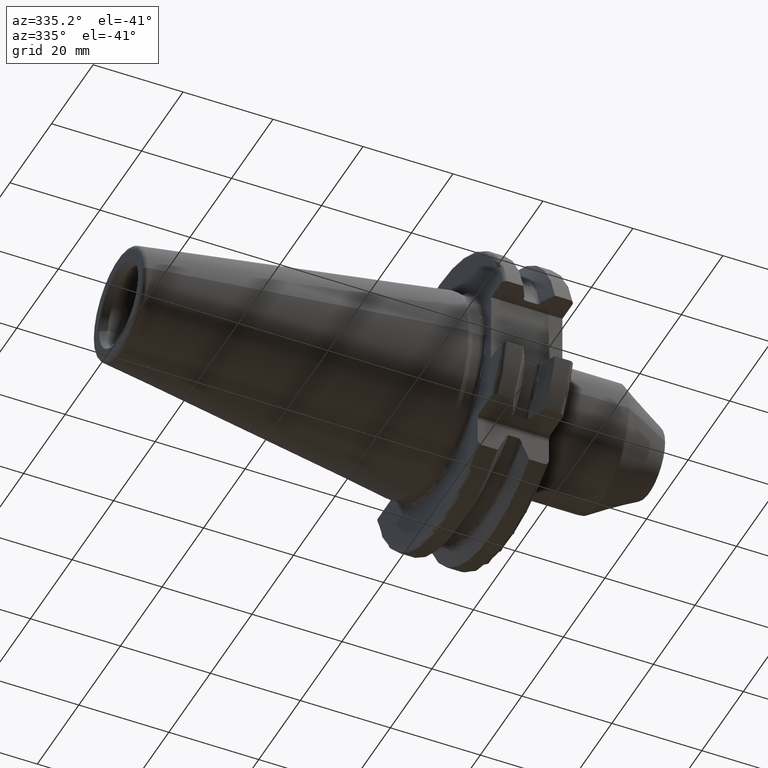
[diagram: clean part render]
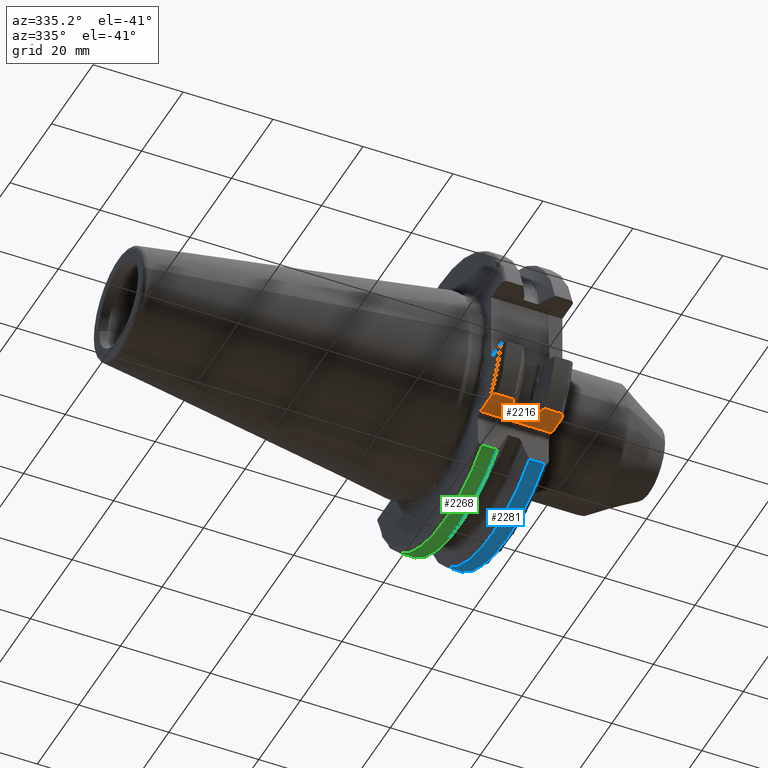
[diagram: same view with three faces highlighted in distinct colors, each labeled with its STEP entity id]
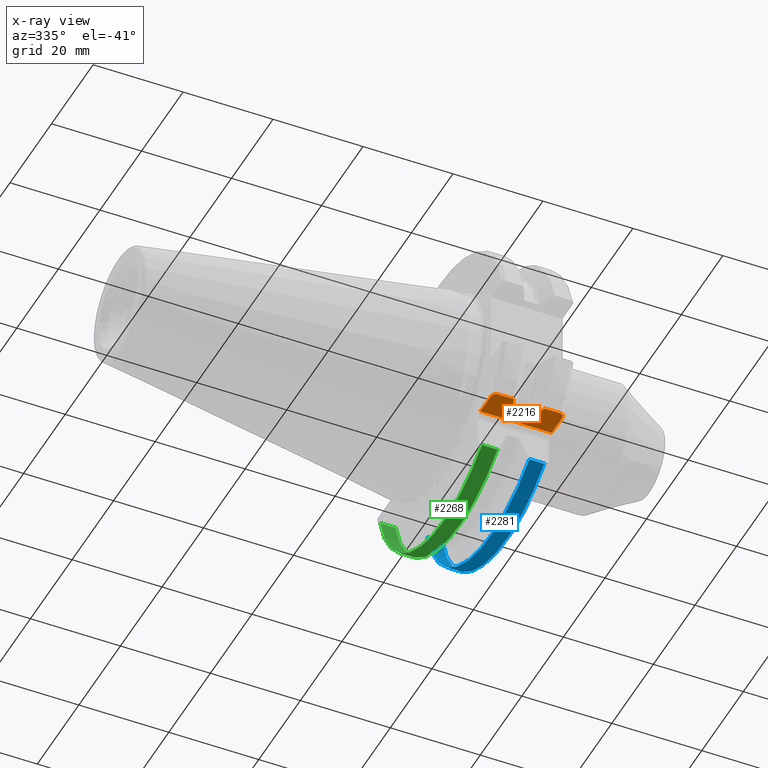
[diagram: x-ray of the same camera — body ghosted, the three highlighted faces saturated]
A machine part, auxiliary view with three faces highlighted in distinct colors.
The next image is the same camera in x-ray (body ghosted, the three faces saturated) — at least one of them is partly hidden behind the body in this view.
Their STEP definitions:

[orange] entity #2216 — the highlighted planar face has unit normal (0, 0, 1).
#130=DIRECTION('',(0.E0,-1.E0,0.E0));
#131=VECTOR('',#130,4.990259339464E0);
#132=CARTESIAN_POINT('',(1.905E1,-1.97E1,-1.835E1));
#133=LINE('',#132,#131);
#215=CARTESIAN_POINT('',(1.805E1,-2.592554543785E1,-1.835E1));
#216=CARTESIAN_POINT('',(1.813212338439E1,-2.592554543785E1,-1.835E1));
#217=CARTESIAN_POINT('',(1.828899791264E1,-2.590126602071E1,-1.835E1));
#218=CARTESIAN_POINT('',(1.850456061075E1,-2.580336184097E1,-1.835E1));
#219=CARTESIAN_POINT('',(1.869355777997E1,-2.565106696565E1,-1.835E1));
#220=CARTESIAN_POINT('',(1.884977948421E1,-2.545153147245E1,-1.835E1));
#221=CARTESIAN_POINT('',(1.896635606524E1,-2.521284780512E1,-1.835E1));
#222=CARTESIAN_POINT('',(1.903551041118E1,-2.495187183939E1,-1.835E1));
#223=CARTESIAN_POINT('',(1.905E1,-2.477824975790E1,-1.835E1));
#224=CARTESIAN_POINT('',(1.905E1,-2.469025933946E1,-1.835E1));
#260=DIRECTION('',(0.E0,-1.E0,0.E0));
#261=VECTOR('',#260,2.754068371193E-1);
#262=CARTESIAN_POINT('',(9.2625E0,-2.213232929450E1,-1.835E1));
#263=LINE('',#262,#261);
#384=DIRECTION('',(0.E0,-1.E0,0.E0));
#385=VECTOR('',#384,2.754068371193E-1);
#386=CARTESIAN_POINT('',(1.30875E1,-2.213232929450E1,-1.835E1));
#387=LINE('',#386,#385);
#470=DIRECTION('',(0.E0,-1.E0,0.E0));
#471=VECTOR('',#470,4.990259339464E0);
#472=CARTESIAN_POINT('',(3.2E0,-1.97E1,-1.835E1));
#473=LINE('',#472,#471);
#521=DIRECTION('',(-1.E0,0.E0,0.E0));
#522=VECTOR('',#521,1.585E1);
#523=CARTESIAN_POINT('',(1.905E1,-1.97E1,-1.835E1));
#524=LINE('',#523,#522);
#578=CARTESIAN_POINT('',(3.2E0,-2.469025933946E1,-1.835E1));
#579=CARTESIAN_POINT('',(3.2E0,-2.477814790224E1,-1.835E1));
#580=CARTESIAN_POINT('',(3.214453176838E0,-2.495164598407E1,-1.835E1));
#581=CARTESIAN_POINT('',(3.283586130488E0,-2.521272246670E1,-1.835E1));
#582=CARTESIAN_POINT('',(3.400262869836E0,-2.545165302319E1,-1.835E1));
#583=CARTESIAN_POINT('',(3.556766347956E0,-2.565140571383E1,-1.835E1));
#584=CARTESIAN_POINT('',(3.745700802454E0,-2.580351551775E1,-1.835E1));
#585=CARTESIAN_POINT('',(3.961315299011E0,-2.590135331215E1,-1.835E1));
#586=CARTESIAN_POINT('',(4.118001888193E0,-2.592554543785E1,-1.835E1));
#587=CARTESIAN_POINT('',(4.2E0,-2.592554543785E1,-1.835E1));
#629=DIRECTION('',(1.E0,0.E0,0.E0));
#630=VECTOR('',#629,3.445946479578E0);
#631=CARTESIAN_POINT('',(4.2E0,-2.592554543785E1,-1.835E1));
#632=LINE('',#631,#630);
#642=DIRECTION('',(1.E0,0.E0,0.E0));
#643=VECTOR('',#642,3.345946479578E0);
#644=CARTESIAN_POINT('',(1.470405352042E1,-2.592554543785E1,-1.835E1));
#645=LINE('',#644,#643);
#672=CARTESIAN_POINT('',(7.645946479578E0,-2.592554543785E1,-1.835E1));
#673=CARTESIAN_POINT('',(7.840734312224E0,-2.551220373088E1,-1.835E1));
#674=CARTESIAN_POINT('',(8.220141308932E0,-2.470049176917E1,-1.835E1));
#675=CARTESIAN_POINT('',(8.758437713718E0,-2.352887013532E1,-1.835E1));
#676=CARTESIAN_POINT('',(9.097761957890E0,-2.277653815910E1,-1.835E1));
#677=CARTESIAN_POINT('',(9.2625E0,-2.240773613162E1,-1.835E1));
#709=CARTESIAN_POINT('',(1.470405352042E1,-2.592554543785E1,-1.835E1));
#710=CARTESIAN_POINT('',(1.450926568778E1,-2.551220373088E1,-1.835E1));
#711=CARTESIAN_POINT('',(1.412985869107E1,-2.470049176917E1,-1.835E1));
#712=CARTESIAN_POINT('',(1.359156228628E1,-2.352887013532E1,-1.835E1));
#713=CARTESIAN_POINT('',(1.325223804211E1,-2.277653815910E1,-1.835E1));
#714=CARTESIAN_POINT('',(1.30875E1,-2.240773613162E1,-1.835E1));
#759=CARTESIAN_POINT('',(1.23375E1,-2.114893614346E1,-1.835E1));
#760=CARTESIAN_POINT('',(1.239799666480E1,-2.114893614346E1,-1.835E1));
#761=CARTESIAN_POINT('',(1.251396986535E1,-2.116785152132E1,-1.835E1));
#762=CARTESIAN_POINT('',(1.267556142957E1,-2.124601456532E1,-1.835E1));
#763=CARTESIAN_POINT('',(1.281688441878E1,-2.136713991448E1,-1.835E1));
#764=CARTESIAN_POINT('',(1.293475132222E1,-2.152625151907E1,-1.835E1));
#765=CARTESIAN_POINT('',(1.302308783904E1,-2.171592050258E1,-1.835E1));
#766=CARTESIAN_POINT('',(1.307623863613E1,-2.192395648237E1,-1.835E1));
#767=CARTESIAN_POINT('',(1.30875E1,-2.206223673534E1,-1.835E1));
#768=CARTESIAN_POINT('',(1.30875E1,-2.213232929450E1,-1.835E1));
#792=DIRECTION('',(1.E0,0.E0,0.E0));
#793=VECTOR('',#792,2.325E0);
#794=CARTESIAN_POINT('',(1.00125E1,-2.114893614346E1,-1.835E1));
#795=LINE('',#794,#793);
#839=CARTESIAN_POINT('',(9.2625E0,-2.213232929450E1,-1.835E1));
#840=CARTESIAN_POINT('',(9.2625E0,-2.206205010258E1,-1.835E1));
#841=CARTESIAN_POINT('',(9.273824296384E0,-2.192350268305E1,-1.835E1));
#842=CARTESIAN_POINT('',(9.327086888097E0,-2.171543492369E1,-1.835E1));
#843=CARTESIAN_POINT('',(9.415447479285E0,-2.152595261083E1,-1.835E1));
#844=CARTESIAN_POINT('',(9.533154189828E0,-2.136711562859E1,-1.835E1));
#845=CARTESIAN_POINT('',(9.674480633358E0,-2.124598357406E1,-1.835E1));
#846=CARTESIAN_POINT('',(9.836053957432E0,-2.116784781107E1,-1.835E1));
#847=CARTESIAN_POINT('',(9.952012380721E0,-2.114893614346E1,-1.835E1));
#848=CARTESIAN_POINT('',(1.00125E1,-2.114893614346E1,-1.835E1));
#1418=CARTESIAN_POINT('',(9.2625E0,-2.213232929450E1,-1.835E1));
#1419=CARTESIAN_POINT('',(9.2625E0,-2.240773613162E1,-1.835E1));
#1420=VERTEX_POINT('',#1418);
#1421=VERTEX_POINT('',#1419);
#1446=CARTESIAN_POINT('',(1.30875E1,-2.213232929450E1,-1.835E1));
#1447=CARTESIAN_POINT('',(1.30875E1,-2.240773613162E1,-1.835E1));
#1448=VERTEX_POINT('',#1446);
#1449=VERTEX_POINT('',#1447);
#1525=CARTESIAN_POINT('',(1.470405352042E1,-2.592554543785E1,-1.835E1));
#1526=VERTEX_POINT('',#1525);
#1527=CARTESIAN_POINT('',(7.645946479578E0,-2.592554543785E1,-1.835E1));
#1528=VERTEX_POINT('',#1527);
#1537=CARTESIAN_POINT('',(1.905E1,-1.97E1,-1.835E1));
#1538=CARTESIAN_POINT('',(1.905E1,-2.469025933946E1,-1.835E1));
#1539=VERTEX_POINT('',#1537);
#1540=VERTEX_POINT('',#1538);
#1543=CARTESIAN_POINT('',(3.2E0,-1.97E1,-1.835E1));
#1544=CARTESIAN_POINT('',(3.2E0,-2.469025933946E1,-1.835E1));
#1545=VERTEX_POINT('',#1543);
#1546=VERTEX_POINT('',#1544);
#1581=VERTEX_POINT('',#848);
#1582=CARTESIAN_POINT('',(1.23375E1,-2.114893614346E1,-1.835E1));
#1583=VERTEX_POINT('',#1582);
#1586=CARTESIAN_POINT('',(4.2E0,-2.592554543785E1,-1.835E1));
#1587=VERTEX_POINT('',#1586);
#1588=CARTESIAN_POINT('',(1.805E1,-2.592554543785E1,-1.835E1));
#1589=VERTEX_POINT('',#1588);
#2186=CARTESIAN_POINT('',(1.905E1,-1.835E1,-1.835E1));
#2187=DIRECTION('',(0.E0,0.E0,1.E0));
#2188=DIRECTION('',(0.E0,-1.E0,0.E0));
#2189=AXIS2_PLACEMENT_3D('',#2186,#2187,#2188);
#2190=PLANE('',#2189);
#2191=ORIENTED_EDGE('',*,*,#1771,.F.);
#2193=ORIENTED_EDGE('',*,*,#2192,.T.);
#2194=ORIENTED_EDGE('',*,*,#2161,.T.);
#2196=ORIENTED_EDGE('',*,*,#2195,.T.);
#2198=ORIENTED_EDGE('',*,*,#2197,.T.);
#2200=ORIENTED_EDGE('',*,*,#2199,.T.);
#2201=ORIENTED_EDGE('',*,*,#1935,.F.);
#2203=ORIENTED_EDGE('',*,*,#2202,.T.);
#2205=ORIENTED_EDGE('',*,*,#2204,.T.);
#2207=ORIENTED_EDGE('',*,*,#2206,.T.);
#2208=ORIENTED_EDGE('',*,*,#2097,.T.);
#2210=ORIENTED_EDGE('',*,*,#2209,.F.);
#2212=ORIENTED_EDGE('',*,*,#2211,.T.);
#2213=ORIENTED_EDGE('',*,*,#1856,.T.);
#2214=EDGE_LOOP('',(#2191,#2193,#2194,#2196,#2198,#2200,#2201,#2203,#2205,#2207,
#2208,#2210,#2212,#2213));
#2215=FACE_OUTER_BOUND('',#2214,.F.);
#2216=ADVANCED_FACE('',(#2215),#2190,.F.);
#225=B_SPLINE_CURVE_WITH_KNOTS('',3,(#215,#216,#217,#218,#219,#220,#221,#222,
#223,#224),.UNSPECIFIED.,.F.,.F.,(4,1,1,1,1,1,1,4),(0.E0,1.428571428571E-1,
2.857142857143E-1,4.285714285714E-1,5.714285714286E-1,7.142857142857E-1,
8.571428571429E-1,1.E0),.UNSPECIFIED.);
#588=B_SPLINE_CURVE_WITH_KNOTS('',3,(#578,#579,#580,#581,#582,#583,#584,#585,
#586,#587),.UNSPECIFIED.,.F.,.F.,(4,1,1,1,1,1,1,4),(0.E0,1.428571428571E-1,
2.857142857143E-1,4.285714285714E-1,5.714285714286E-1,7.142857142857E-1,
8.571428571429E-1,1.E0),.UNSPECIFIED.);
#678=B_SPLINE_CURVE_WITH_KNOTS('',3,(#672,#673,#674,#675,#676,#677),
.UNSPECIFIED.,.F.,.F.,(4,1,1,4),(0.E0,3.333333333333E-1,6.666666666667E-1,1.E0),
.UNSPECIFIED.);
#715=B_SPLINE_CURVE_WITH_KNOTS('',3,(#709,#710,#711,#712,#713,#714),
.UNSPECIFIED.,.F.,.F.,(4,1,1,4),(0.E0,3.333333333333E-1,6.666666666667E-1,1.E0),
.UNSPECIFIED.);
#769=B_SPLINE_CURVE_WITH_KNOTS('',3,(#759,#760,#761,#762,#763,#764,#765,#766,
#767,#768),.UNSPECIFIED.,.F.,.F.,(4,1,1,1,1,1,1,4),(0.E0,1.428571428571E-1,
2.857142857143E-1,4.285714285714E-1,5.714285714286E-1,7.142857142857E-1,
8.571428571429E-1,1.E0),.UNSPECIFIED.);
#849=B_SPLINE_CURVE_WITH_KNOTS('',3,(#839,#840,#841,#842,#843,#844,#845,#846,
#847,#848),.UNSPECIFIED.,.F.,.F.,(4,1,1,1,1,1,1,4),(0.E0,1.428571428571E-1,
2.857142857143E-1,4.285714285714E-1,5.714285714286E-1,7.142857142857E-1,
8.571428571429E-1,1.E0),.UNSPECIFIED.);
#1771=EDGE_CURVE('',#1539,#1540,#133,.T.);
#1856=EDGE_CURVE('',#1589,#1540,#225,.T.);
#1935=EDGE_CURVE('',#1420,#1421,#263,.T.);
#2097=EDGE_CURVE('',#1448,#1449,#387,.T.);
#2161=EDGE_CURVE('',#1545,#1546,#473,.T.);
#2192=EDGE_CURVE('',#1539,#1545,#524,.T.);
#2195=EDGE_CURVE('',#1546,#1587,#588,.T.);
#2197=EDGE_CURVE('',#1587,#1528,#632,.T.);
#2199=EDGE_CURVE('',#1528,#1421,#678,.T.);
#2202=EDGE_CURVE('',#1420,#1581,#849,.T.);
#2204=EDGE_CURVE('',#1581,#1583,#795,.T.);
#2206=EDGE_CURVE('',#1583,#1448,#769,.T.);
#2209=EDGE_CURVE('',#1526,#1449,#715,.T.);
#2211=EDGE_CURVE('',#1526,#1589,#645,.T.);

[blue] entity #2281 — the highlighted cylindrical surface (partial cylindrical patch) has radius 31.7625 mm, axis along (1, 0, 0).
#602=DIRECTION('',(1.E0,0.E0,0.E0));
#603=VECTOR('',#602,3.345946479578E0);
#604=CARTESIAN_POINT('',(1.470405352042E1,3.071231684927E1,-8.1E0));
#605=LINE('',#604,#603);
#606=CARTESIAN_POINT('',(1.470405352042E1,0.E0,0.E0));
#607=DIRECTION('',(1.E0,0.E0,0.E0));
#608=DIRECTION('',(0.E0,-5.777253049980E-1,-8.162312613254E-1));
#609=AXIS2_PLACEMENT_3D('',#606,#607,#608);
#611=DIRECTION('',(1.E0,0.E0,0.E0));
#612=VECTOR('',#611,3.345946479578E0);
#613=CARTESIAN_POINT('',(1.470405352042E1,-1.835E1,-2.592554543785E1));
#614=LINE('',#613,#612);
#615=CARTESIAN_POINT('',(1.805E1,0.E0,0.E0));
#616=DIRECTION('',(-1.E0,0.E0,0.E0));
#617=DIRECTION('',(0.E0,9.669363825036E-1,-2.550177095632E-1));
#618=AXIS2_PLACEMENT_3D('',#615,#616,#617);
#688=CARTESIAN_POINT('',(1.470405352042E1,3.071231684927E1,-8.1E0));
#700=CARTESIAN_POINT('',(1.470405352042E1,-1.835E1,-2.592554543785E1));
#1464=VERTEX_POINT('',#688);
#1514=CARTESIAN_POINT('',(1.805E1,3.071231684927E1,-8.1E0));
#1515=VERTEX_POINT('',#1514);
#1531=CARTESIAN_POINT('',(1.805E1,-1.835E1,-2.592554543785E1));
#1532=VERTEX_POINT('',#1531);
#1584=VERTEX_POINT('',#700);
#2269=CARTESIAN_POINT('',(-7.2615E1,0.E0,0.E0));
#2270=DIRECTION('',(1.E0,0.E0,0.E0));
#2271=DIRECTION('',(0.E0,-1.E0,0.E0));
#2272=AXIS2_PLACEMENT_3D('',#2269,#2270,#2271);
#2273=CYLINDRICAL_SURFACE('',#2272,3.17625E1);
#2274=ORIENTED_EDGE('',*,*,#1880,.F.);
#2276=ORIENTED_EDGE('',*,*,#2275,.F.);
#2277=ORIENTED_EDGE('',*,*,#1807,.T.);
#2278=ORIENTED_EDGE('',*,*,#1841,.F.);
#2279=EDGE_LOOP('',(#2274,#2276,#2277,#2278));
#2280=FACE_OUTER_BOUND('',#2279,.F.);
#2281=ADVANCED_FACE('',(#2280),#2273,.T.);
#610=CIRCLE('',#609,3.17625E1);
#619=CIRCLE('',#618,3.17625E1);
#1807=EDGE_CURVE('',#1584,#1532,#614,.T.);
#1841=EDGE_CURVE('',#1515,#1532,#619,.T.);
#1880=EDGE_CURVE('',#1464,#1515,#605,.T.);
#2275=EDGE_CURVE('',#1584,#1464,#610,.T.);

[green] entity #2268 — the highlighted cylindrical surface (partial cylindrical patch) has radius 31.7625 mm, axis along (1, 0, 0).
#557=CARTESIAN_POINT('',(4.2E0,0.E0,0.E0));
#558=DIRECTION('',(-1.E0,0.E0,0.E0));
#559=DIRECTION('',(0.E0,9.669363825036E-1,-2.550177095632E-1));
#560=AXIS2_PLACEMENT_3D('',#557,#558,#559);
#589=DIRECTION('',(1.E0,0.E0,0.E0));
#590=VECTOR('',#589,3.445946479578E0);
#591=CARTESIAN_POINT('',(4.2E0,3.071231684927E1,-8.1E0));
#592=LINE('',#591,#590);
#593=DIRECTION('',(1.E0,0.E0,0.E0));
#594=VECTOR('',#593,3.445946479578E0);
#595=CARTESIAN_POINT('',(4.2E0,-1.835E1,-2.592554543785E1));
#596=LINE('',#595,#594);
#597=CARTESIAN_POINT('',(7.645946479578E0,0.E0,0.E0));
#598=DIRECTION('',(1.E0,0.E0,0.E0));
#599=DIRECTION('',(0.E0,-5.777253049980E-1,-8.162312613254E-1));
#600=AXIS2_PLACEMENT_3D('',#597,#598,#599);
#656=CARTESIAN_POINT('',(7.645946479578E0,3.071231684927E1,-8.1E0));
#663=CARTESIAN_POINT('',(7.645946479578E0,-1.835E1,-2.592554543785E1));
#1466=VERTEX_POINT('',#656);
#1512=CARTESIAN_POINT('',(4.2E0,3.071231684927E1,-8.1E0));
#1513=VERTEX_POINT('',#1512);
#1533=CARTESIAN_POINT('',(4.2E0,-1.835E1,-2.592554543785E1));
#1534=VERTEX_POINT('',#1533);
#1585=VERTEX_POINT('',#663);
#2256=CARTESIAN_POINT('',(-7.2615E1,0.E0,0.E0));
#2257=DIRECTION('',(1.E0,0.E0,0.E0));
#2258=DIRECTION('',(0.E0,-1.E0,0.E0));
#2259=AXIS2_PLACEMENT_3D('',#2256,#2257,#2258);
#2260=CYLINDRICAL_SURFACE('',#2259,3.17625E1);
#2261=ORIENTED_EDGE('',*,*,#1889,.F.);
#2262=ORIENTED_EDGE('',*,*,#2237,.T.);
#2263=ORIENTED_EDGE('',*,*,#1823,.T.);
#2265=ORIENTED_EDGE('',*,*,#2264,.T.);
#2266=EDGE_LOOP('',(#2261,#2262,#2263,#2265));
#2267=FACE_OUTER_BOUND('',#2266,.F.);
#2268=ADVANCED_FACE('',(#2267),#2260,.T.);
#561=CIRCLE('',#560,3.17625E1);
#601=CIRCLE('',#600,3.17625E1);
#1823=EDGE_CURVE('',#1534,#1585,#596,.T.);
#1889=EDGE_CURVE('',#1513,#1466,#592,.T.);
#2237=EDGE_CURVE('',#1513,#1534,#561,.T.);
#2264=EDGE_CURVE('',#1585,#1466,#601,.T.);